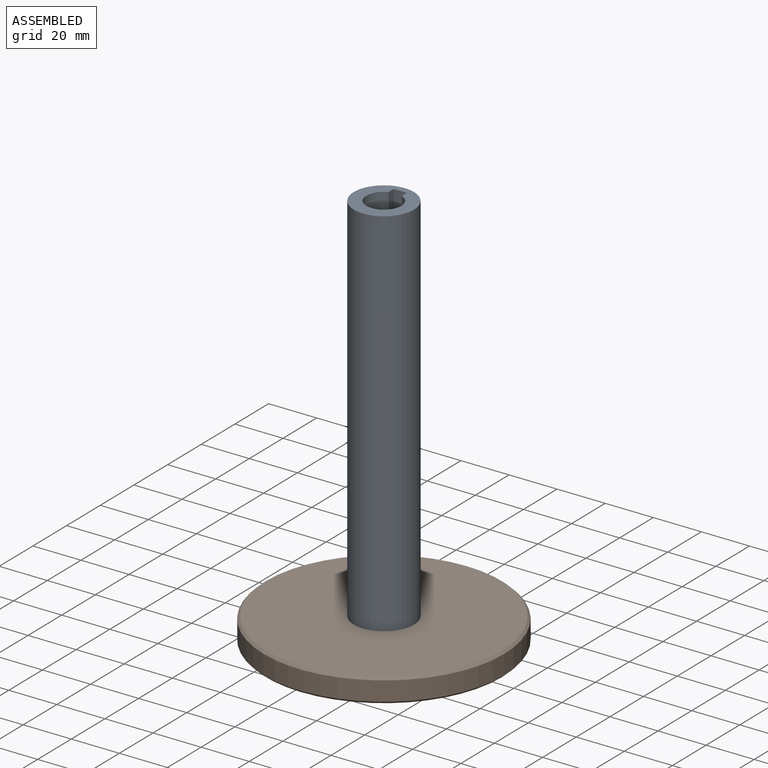
[diagram: assembled view]
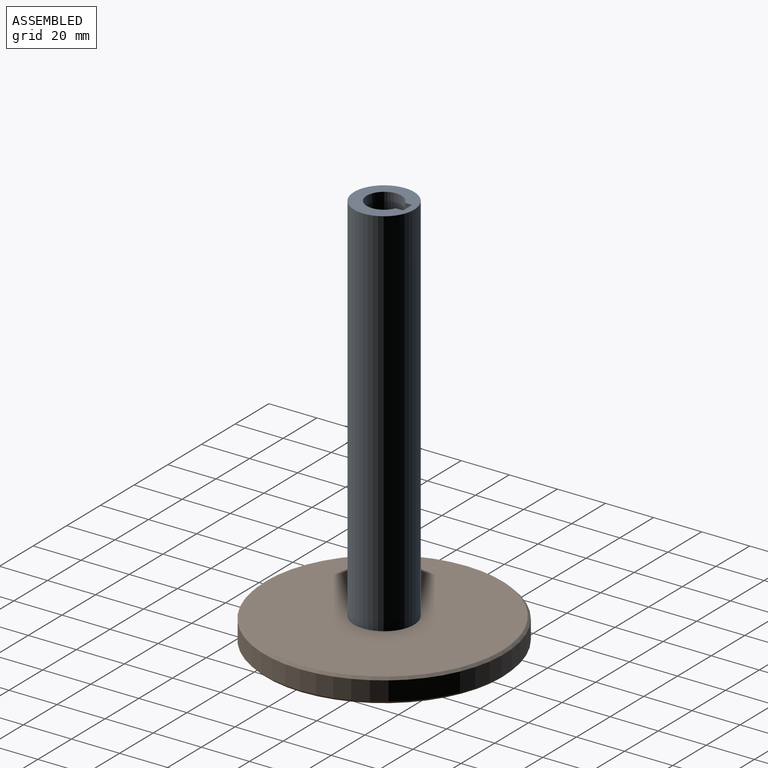
[diagram: assembled view, second angle]
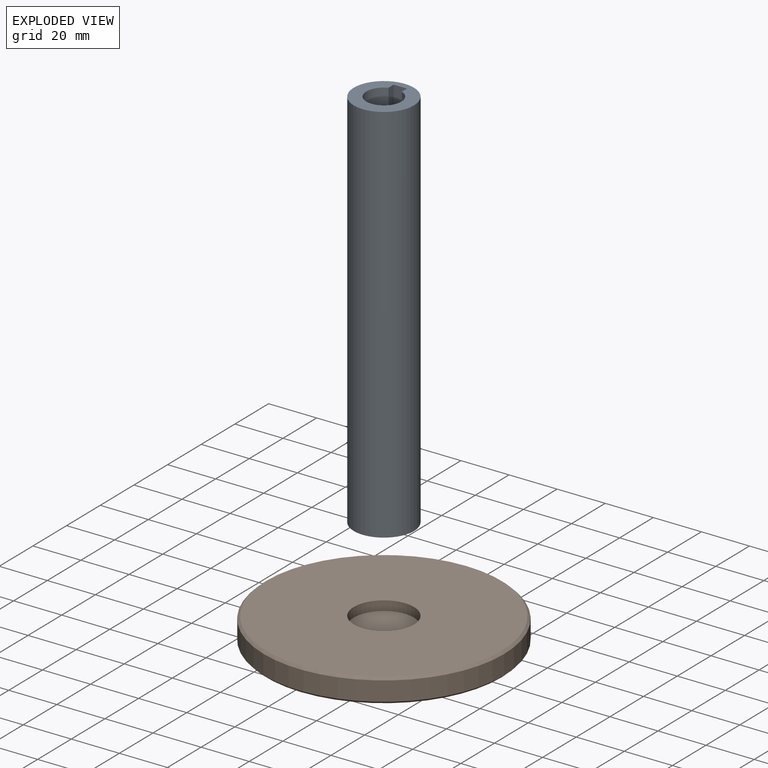
[diagram: exploded view]
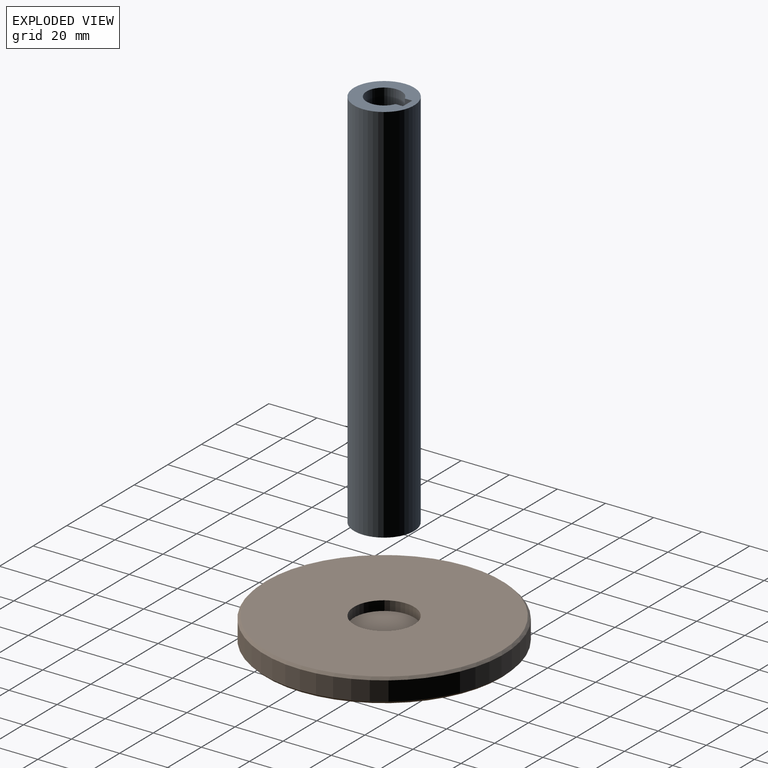
[diagram: exploded view, second angle]
ASSEMBLY  parts=2 mates=2
PART A: 8 faces, bbox 25x25x160 mm
  f0: cylinder r=12.5mm len=160mm, axis (0,0,-1), area 12566.4mm2, adj f1,f2
  f1: plane 25x25mm, normal (0,0,1), area 311mm2, adj f0,f3,f4,f5,f6
  f2: plane 25x25mm, normal (0,0,-1), area 490.9mm2, adj f0
  f3: plane 40x3.04mm, normal (1,0,0), area 121.7mm2, adj f1,f4,f6,f7
  f4: cylinder r=7.25mm len=40mm, axis (0,0,1), area 1596.5mm2, adj f1,f3,f5,f7
  f5: plane 40x3.04mm, normal (-1,0,0), area 121.7mm2, adj f1,f4,f6,f7
  f6: plane 40x5.5mm, normal (0,-1,0), area 220mm2, adj f1,f3,f5,f7
  f7: plane 17x14.5mm, normal (0,0,1), area 179.9mm2, adj f3,f4,f5,f6
PART B: 7 faces, bbox 100x100x10 mm
  f0: cylinder r=50mm len=100mm, axis (0,0,-1), area 2513.3mm2, adj f5,f6
  f1: plane 98x98mm, normal (0,0,1), area 7052.1mm2, adj f3,f6
  f2: plane 98x98mm, normal (0,0,-1), area 7543mm2, adj f5
  f3: cylinder r=12.5mm len=25mm, axis (0,0,1), area 314.2mm2, adj f1,f4
  f4: plane 25x25mm, normal (0,0,1), area 490.9mm2, adj f3
  f5: cone r=50mm half-angle=45deg, axis (0,0,1), area 439.8mm2, adj f0,f2
  f6: cone r=49mm half-angle=45deg, axis (0,0,-1), area 439.8mm2, adj f0,f1
PLACE A t=(0,0,6)mm
PLACE B at identity
MATE cylindrical A.f0 <-> B.f3  axis (0,0,-1) through (0,0,6)mm
MATE planar A.f0 <-> B.f3  axis (0,0,-1) through (0,0,6)mm
